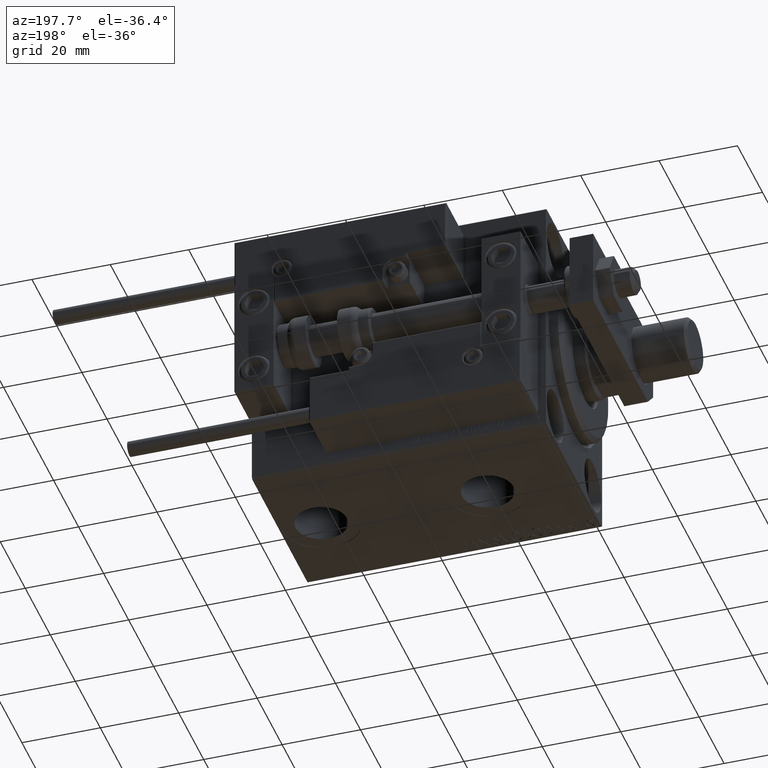
[diagram: clean part render]
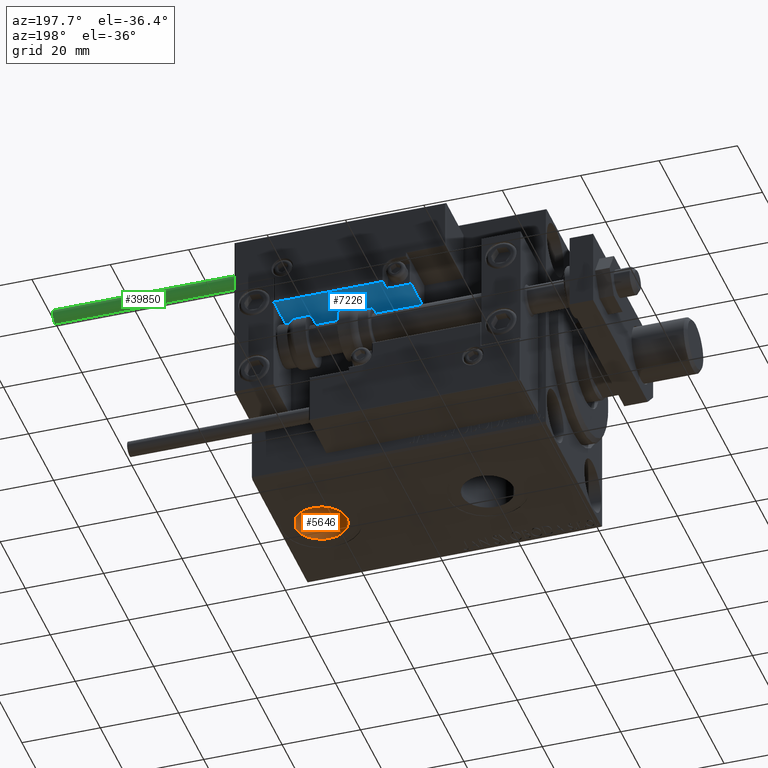
[diagram: same view with three faces highlighted in distinct colors, each labeled with its STEP entity id]
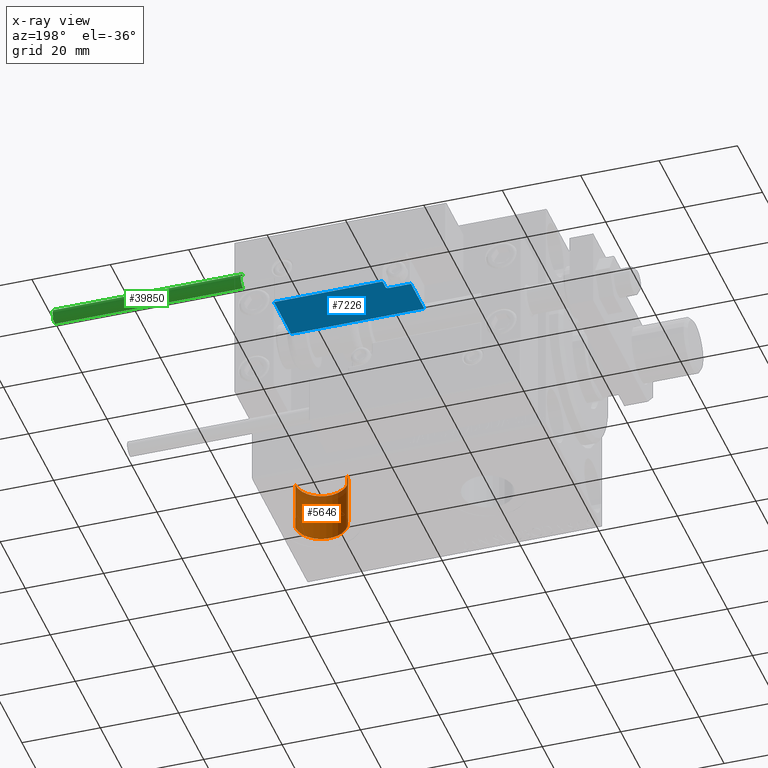
[diagram: x-ray of the same camera — body ghosted, the three highlighted faces saturated]
A machine part, auxiliary view with three faces highlighted in distinct colors.
The next image is the same camera in x-ray (body ghosted, the three faces saturated) — at least one of them is partly hidden behind the body in this view.
Their STEP definitions:

[orange] entity #5646 — the highlighted cylindrical surface (edge-blend (fillet) strip) has radius 6.58 mm, axis along (-0, -0, -1).
#318 = LINE ( 'NONE', #8537, #21502 ) ;
#3001 = EDGE_CURVE ( 'NONE', #33838, #27444, #40723, .T. ) ;
#5646 = ADVANCED_FACE ( 'NONE', ( #14726 ), #10365, .F. ) ;
#8537 = CARTESIAN_POINT ( 'NONE',  ( 57.92000000000000171, -6.655964947265702476E-15, -19.50000000000000355 ) ) ;
#9052 = DIRECTION ( 'NONE',  ( -0.000000000000000000, -0.000000000000000000, -1.000000000000000000 ) ) ;
#10365 = CYLINDRICAL_SURFACE ( 'NONE', #49842, 6.580000000000002736 ) ;
#12857 = ORIENTED_EDGE ( 'NONE', *, *, #28676, .T. ) ;
#14726 = FACE_OUTER_BOUND ( 'NONE', #47660, .T. ) ;
#15369 = DIRECTION ( 'NONE',  ( -0.000000000000000000, -0.000000000000000000, -1.000000000000000000 ) ) ;
#17251 = ORIENTED_EDGE ( 'NONE', *, *, #44920, .T. ) ;
#18625 = CARTESIAN_POINT ( 'NONE',  ( 57.92000000000000171, -6.655964947265702476E-15, -32.40000000000000568 ) ) ;
#18986 = DIRECTION ( 'NONE',  ( 0.000000000000000000, 0.000000000000000000, -1.000000000000000000 ) ) ;
#19287 = CARTESIAN_POINT ( 'NONE',  ( 64.50000000000000000, -6.655964947265702476E-15, -19.50000000000000355 ) ) ;
#21502 = VECTOR ( 'NONE', #9052, 1000.000000000000000 ) ;
#23073 = CARTESIAN_POINT ( 'NONE',  ( 71.07999999999999829, -5.850147353426744223E-15, -19.50000000000000355 ) ) ;
#24225 = CARTESIAN_POINT ( 'NONE',  ( 57.92000000000000171, -6.655964947265702476E-15, -19.50000000000000355 ) ) ;
#26007 = DIRECTION ( 'NONE',  ( -0.000000000000000000, -0.000000000000000000, -1.000000000000000000 ) ) ;
#26129 = CARTESIAN_POINT ( 'NONE',  ( 71.07999999999999829, -5.850147353426744223E-15, -32.40000000000000568 ) ) ;
#27444 = VERTEX_POINT ( 'NONE', #24225 ) ;
#27698 = ORIENTED_EDGE ( 'NONE', *, *, #42761, .F. ) ;
#27736 = DIRECTION ( 'NONE',  ( -1.000000000000000000, 0.000000000000000000, 0.000000000000000000 ) ) ;
#28587 = CIRCLE ( 'NONE', #32692, 6.580000000000002736 ) ;
#28676 = EDGE_CURVE ( 'NONE', #47356, #36483, #28587, .T. ) ;
#31583 = DIRECTION ( 'NONE',  ( 0.000000000000000000, 0.000000000000000000, -1.000000000000000000 ) ) ;
#32692 = AXIS2_PLACEMENT_3D ( 'NONE', #34118, #18986, #50064 ) ;
#33455 = CARTESIAN_POINT ( 'NONE',  ( 64.50000000000000000, -6.655964947265702476E-15, -19.50000000000000355 ) ) ;
#33838 = VERTEX_POINT ( 'NONE', #38835 ) ;
#34118 = CARTESIAN_POINT ( 'NONE',  ( 64.50000000000000000, -6.655964947265702476E-15, -32.40000000000000568 ) ) ;
#36483 = VERTEX_POINT ( 'NONE', #18625 ) ;
#37790 = ORIENTED_EDGE ( 'NONE', *, *, #3001, .F. ) ;
#38274 = AXIS2_PLACEMENT_3D ( 'NONE', #19287, #31583, #27736 ) ;
#38835 = CARTESIAN_POINT ( 'NONE',  ( 71.07999999999999829, -5.850147353426744223E-15, -19.50000000000000355 ) ) ;
#40723 = CIRCLE ( 'NONE', #38274, 6.580000000000002736 ) ;
#42761 = EDGE_CURVE ( 'NONE', #27444, #36483, #318, .T. ) ;
#42885 = VECTOR ( 'NONE', #15369, 1000.000000000000000 ) ;
#44920 = EDGE_CURVE ( 'NONE', #33838, #47356, #50043, .T. ) ;
#47356 = VERTEX_POINT ( 'NONE', #26129 ) ;
#47660 = EDGE_LOOP ( 'NONE', ( #37790, #17251, #12857, #27698 ) ) ;
#49126 = DIRECTION ( 'NONE',  ( -1.000000000000000000, 0.000000000000000000, 0.000000000000000000 ) ) ;
#49842 = AXIS2_PLACEMENT_3D ( 'NONE', #33455, #26007, #49126 ) ;
#50043 = LINE ( 'NONE', #23073, #42885 ) ;
#50064 = DIRECTION ( 'NONE',  ( -1.000000000000000000, 0.000000000000000000, 0.000000000000000000 ) ) ;

[blue] entity #7226 — the highlighted planar face has unit normal (0, 0, 1).
#827 = EDGE_CURVE ( 'NONE', #1530, #35574, #31218, .T. ) ;
#1530 = VERTEX_POINT ( 'NONE', #32802 ) ;
#2014 = VECTOR ( 'NONE', #29466, 1000.000000000000000 ) ;
#2025 = CARTESIAN_POINT ( 'NONE',  ( 11.00000000000000000, 3.252606517456513302E-15, 10.69999999999999929 ) ) ;
#2620 = VERTEX_POINT ( 'NONE', #25867 ) ;
#4227 = AXIS2_PLACEMENT_3D ( 'NONE', #48450, #17400, #20501 ) ;
#4231 = VERTEX_POINT ( 'NONE', #40750 ) ;
#5413 = DIRECTION ( 'NONE',  ( -1.000000000000000000, 0.000000000000000000, -0.000000000000000000 ) ) ;
#7226 = ADVANCED_FACE ( 'NONE', ( #16294 ), #15785, .F. ) ;
#7831 = ORIENTED_EDGE ( 'NONE', *, *, #48547, .T. ) ;
#9537 = EDGE_CURVE ( 'NONE', #15694, #2620, #24071, .T. ) ;
#10637 = ORIENTED_EDGE ( 'NONE', *, *, #827, .T. ) ;
#11492 = VERTEX_POINT ( 'NONE', #15076 ) ;
#14778 = EDGE_CURVE ( 'NONE', #35574, #2620, #22350, .T. ) ;
#14899 = DIRECTION ( 'NONE',  ( 1.000000000000000000, 0.000000000000000000, 0.000000000000000000 ) ) ;
#15076 = CARTESIAN_POINT ( 'NONE',  ( 10.70000000000000107, 3.252606517456513302E-15, 11.29999999999999893 ) ) ;
#15590 = EDGE_CURVE ( 'NONE', #15694, #4231, #49502, .T. ) ;
#15694 = VERTEX_POINT ( 'NONE', #19698 ) ;
#15785 = PLANE ( 'NONE',  #35011 ) ;
#15828 = CARTESIAN_POINT ( 'NONE',  ( 10.70000000000000107, 3.252606517456513302E-15, 13.70000000000000107 ) ) ;
#16294 = FACE_OUTER_BOUND ( 'NONE', #50184, .T. ) ;
#16701 = CARTESIAN_POINT ( 'NONE',  ( -16.99999999999999289, 3.252606517456513302E-15, 13.70000000000000107 ) ) ;
#16885 = DIRECTION ( 'NONE',  ( -0.000000000000000000, -0.000000000000000000, -1.000000000000000000 ) ) ;
#17210 = LINE ( 'NONE', #16701, #18262 ) ;
#17341 = CARTESIAN_POINT ( 'NONE',  ( -16.99999999999999289, 3.252606517456513302E-15, 0.000000000000000000 ) ) ;
#17386 = ORIENTED_EDGE ( 'NONE', *, *, #14778, .T. ) ;
#17400 = DIRECTION ( 'NONE',  ( -0.000000000000000000, -1.000000000000000000, -0.000000000000000000 ) ) ;
#17516 = DIRECTION ( 'NONE',  ( 0.000000000000000000, -0.000000000000000000, 1.000000000000000000 ) ) ;
#17740 = ORIENTED_EDGE ( 'NONE', *, *, #35234, .F. ) ;
#18262 = VECTOR ( 'NONE', #5413, 1000.000000000000000 ) ;
#19338 = ORIENTED_EDGE ( 'NONE', *, *, #9537, .F. ) ;
#19698 = CARTESIAN_POINT ( 'NONE',  ( 16.99999999999999289, 3.252606517456513302E-15, 10.69999999999999929 ) ) ;
#20501 = DIRECTION ( 'NONE',  ( 0.000000000000000000, 0.000000000000000000, 1.000000000000000000 ) ) ;
#22350 = LINE ( 'NONE', #41579, #47051 ) ;
#23234 = VERTEX_POINT ( 'NONE', #15828 ) ;
#24071 = LINE ( 'NONE', #31769, #25260 ) ;
#24496 = DIRECTION ( 'NONE',  ( 0.000000000000000000, 1.000000000000000000, 0.000000000000000000 ) ) ;
#24746 = ORIENTED_EDGE ( 'NONE', *, *, #15590, .T. ) ;
#25260 = VECTOR ( 'NONE', #16885, 1000.000000000000000 ) ;
#25867 = CARTESIAN_POINT ( 'NONE',  ( 16.99999999999999289, 3.252606517456513302E-15, 0.000000000000000000 ) ) ;
#29120 = ORIENTED_EDGE ( 'NONE', *, *, #38241, .T. ) ;
#29466 = DIRECTION ( 'NONE',  ( -1.000000000000000000, 0.000000000000000000, -0.000000000000000000 ) ) ;
#31218 = LINE ( 'NONE', #47114, #33283 ) ;
#31769 = CARTESIAN_POINT ( 'NONE',  ( 16.99999999999999289, 3.252606517456513302E-15, 14.00000000000000000 ) ) ;
#32217 = VECTOR ( 'NONE', #17516, 1000.000000000000000 ) ;
#32802 = CARTESIAN_POINT ( 'NONE',  ( -16.99999999999999289, 3.252606517456513302E-15, 13.70000000000000107 ) ) ;
#32903 = CARTESIAN_POINT ( 'NONE',  ( 10.70000000000000107, 3.252606517456513302E-15, 14.00000000000000000 ) ) ;
#33283 = VECTOR ( 'NONE', #50753, 1000.000000000000000 ) ;
#35011 = AXIS2_PLACEMENT_3D ( 'NONE', #39383, #24496, #43734 ) ;
#35234 = EDGE_CURVE ( 'NONE', #11492, #4231, #41922, .T. ) ;
#35574 = VERTEX_POINT ( 'NONE', #17341 ) ;
#36493 = LINE ( 'NONE', #32903, #32217 ) ;
#38241 = EDGE_CURVE ( 'NONE', #23234, #1530, #17210, .T. ) ;
#39383 = CARTESIAN_POINT ( 'NONE',  ( -16.99999999999999289, 3.252606517456513302E-15, 14.00000000000000000 ) ) ;
#40750 = CARTESIAN_POINT ( 'NONE',  ( 11.29999999999999893, 3.252606517456513302E-15, 10.69999999999999929 ) ) ;
#41579 = CARTESIAN_POINT ( 'NONE',  ( -16.99999999999999289, 3.252606517456513302E-15, 0.000000000000000000 ) ) ;
#41922 = CIRCLE ( 'NONE', #4227, 0.5999999999999998668 ) ;
#43734 = DIRECTION ( 'NONE',  ( 0.000000000000000000, -0.000000000000000000, 1.000000000000000000 ) ) ;
#47051 = VECTOR ( 'NONE', #14899, 1000.000000000000000 ) ;
#47114 = CARTESIAN_POINT ( 'NONE',  ( -16.99999999999999289, 3.252606517456513302E-15, 14.00000000000000000 ) ) ;
#48450 = CARTESIAN_POINT ( 'NONE',  ( 11.29999999999999893, 3.252606517456513302E-15, 11.29999999999999893 ) ) ;
#48547 = EDGE_CURVE ( 'NONE', #11492, #23234, #36493, .T. ) ;
#49502 = LINE ( 'NONE', #2025, #2014 ) ;
#50184 = EDGE_LOOP ( 'NONE', ( #19338, #24746, #17740, #7831, #29120, #10637, #17386 ) ) ;
#50753 = DIRECTION ( 'NONE',  ( -0.000000000000000000, -0.000000000000000000, -1.000000000000000000 ) ) ;

[green] entity #39850 — the highlighted cylindrical surface (edge-blend (fillet) strip) has radius 1.9 mm, axis along (-1, -0, 0).
#13 = DIRECTION ( 'NONE',  ( -1.000000000000000000, 0.000000000000000000, 0.000000000000000000 ) ) ;
#333 = ORIENTED_EDGE ( 'NONE', *, *, #21409, .T. ) ;
#1084 = EDGE_CURVE ( 'NONE', #28439, #28378, #19048, .T. ) ;
#3901 = DIRECTION ( 'NONE',  ( 0.000000000000000000, 0.000000000000000000, 1.000000000000000000 ) ) ;
#6158 = VERTEX_POINT ( 'NONE', #50150 ) ;
#7255 = CARTESIAN_POINT ( 'NONE',  ( 0.000000000000000000, 0.000000000000000000, 0.000000000000000000 ) ) ;
#9182 = AXIS2_PLACEMENT_3D ( 'NONE', #46459, #30560, #13 ) ;
#10780 = CARTESIAN_POINT ( 'NONE',  ( 0.000000000000000000, 0.000000000000000000, 48.00000000000000000 ) ) ;
#11087 = DIRECTION ( 'NONE',  ( 1.000000000000000000, 0.000000000000000000, 0.000000000000000000 ) ) ;
#11239 = AXIS2_PLACEMENT_3D ( 'NONE', #7255, #3901, #11087 ) ;
#11279 = DIRECTION ( 'NONE',  ( 1.000000000000000000, 0.000000000000000000, 0.000000000000000000 ) ) ;
#12207 = ORIENTED_EDGE ( 'NONE', *, *, #41695, .T. ) ;
#14190 = CARTESIAN_POINT ( 'NONE',  ( -1.899999999999999467, 0.000000000000000000, 48.00000000000000000 ) ) ;
#15133 = DIRECTION ( 'NONE',  ( 0.000000000000000000, 0.000000000000000000, 1.000000000000000000 ) ) ;
#16076 = VECTOR ( 'NONE', #33677, 1000.000000000000000 ) ;
#18123 = ORIENTED_EDGE ( 'NONE', *, *, #24970, .F. ) ;
#19011 = CYLINDRICAL_SURFACE ( 'NONE', #9182, 1.899999999999999467 ) ;
#19048 = LINE ( 'NONE', #14190, #16076 ) ;
#20382 = DIRECTION ( 'NONE',  ( -0.000000000000000000, -0.000000000000000000, -1.000000000000000000 ) ) ;
#21409 = EDGE_CURVE ( 'NONE', #6158, #28378, #41558, .T. ) ;
#24970 = EDGE_CURVE ( 'NONE', #32411, #28439, #26108, .T. ) ;
#26108 = CIRCLE ( 'NONE', #45781, 1.899999999999999467 ) ;
#27212 = VECTOR ( 'NONE', #20382, 1000.000000000000000 ) ;
#28378 = VERTEX_POINT ( 'NONE', #39696 ) ;
#28439 = VERTEX_POINT ( 'NONE', #40204 ) ;
#30560 = DIRECTION ( 'NONE',  ( -0.000000000000000000, -0.000000000000000000, -1.000000000000000000 ) ) ;
#31748 = CARTESIAN_POINT ( 'NONE',  ( 1.899999999999999467, 2.326828918379970872E-16, 48.00000000000000000 ) ) ;
#31915 = LINE ( 'NONE', #42706, #27212 ) ;
#32140 = ORIENTED_EDGE ( 'NONE', *, *, #1084, .F. ) ;
#32411 = VERTEX_POINT ( 'NONE', #31748 ) ;
#33677 = DIRECTION ( 'NONE',  ( -0.000000000000000000, -0.000000000000000000, -1.000000000000000000 ) ) ;
#39007 = FACE_OUTER_BOUND ( 'NONE', #42876, .T. ) ;
#39696 = CARTESIAN_POINT ( 'NONE',  ( -1.899999999999999467, 0.000000000000000000, 0.000000000000000000 ) ) ;
#39850 = ADVANCED_FACE ( 'NONE', ( #39007 ), #19011, .T. ) ;
#40204 = CARTESIAN_POINT ( 'NONE',  ( -1.899999999999999467, 0.000000000000000000, 48.00000000000000000 ) ) ;
#41558 = CIRCLE ( 'NONE', #11239, 1.899999999999999467 ) ;
#41695 = EDGE_CURVE ( 'NONE', #32411, #6158, #31915, .T. ) ;
#42706 = CARTESIAN_POINT ( 'NONE',  ( 1.899999999999999467, 2.326828918379970872E-16, 48.00000000000000000 ) ) ;
#42876 = EDGE_LOOP ( 'NONE', ( #18123, #12207, #333, #32140 ) ) ;
#45781 = AXIS2_PLACEMENT_3D ( 'NONE', #10780, #15133, #11279 ) ;
#46459 = CARTESIAN_POINT ( 'NONE',  ( 0.000000000000000000, 0.000000000000000000, 48.00000000000000000 ) ) ;
#50150 = CARTESIAN_POINT ( 'NONE',  ( 1.899999999999999467, 2.326828918379970872E-16, 0.000000000000000000 ) ) ;